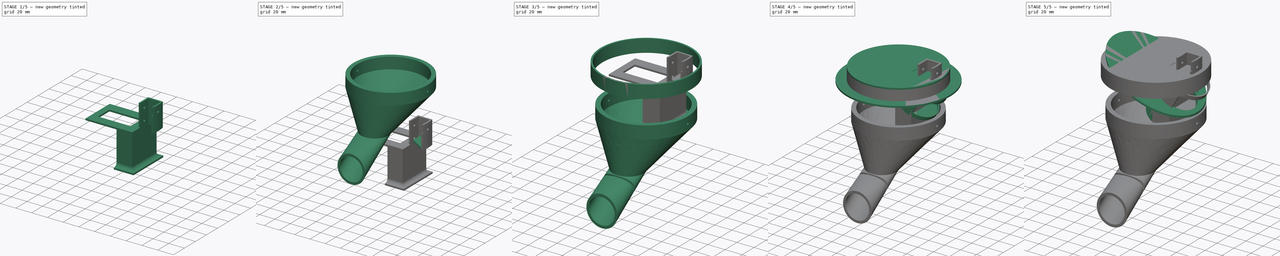
[diagram: build sequence overview — one tinted view per stage of 5, left to right]
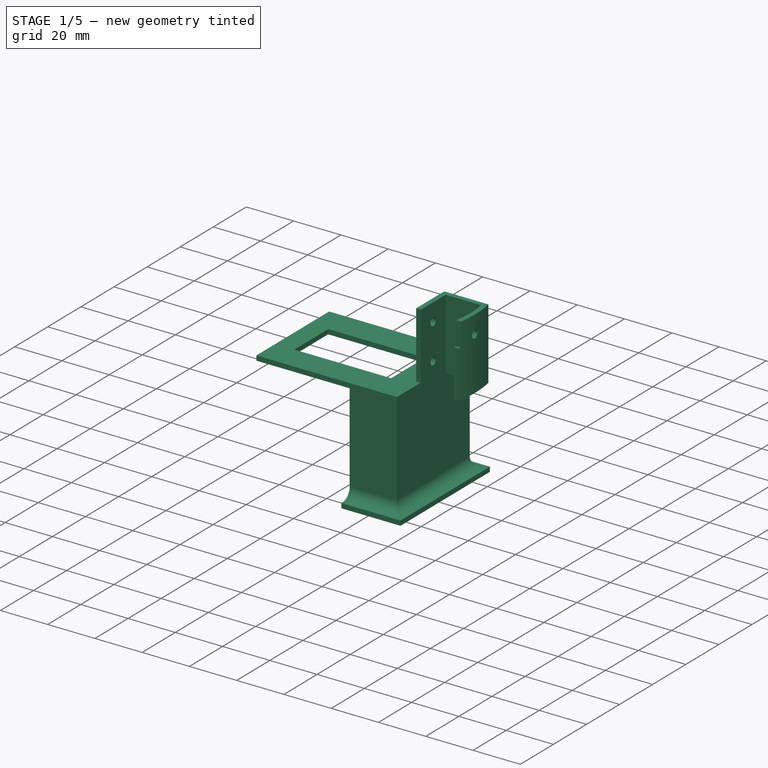
[diagram: stage 1 of 5 — iso view after this stage's code; geometry added in this stage tinted green]
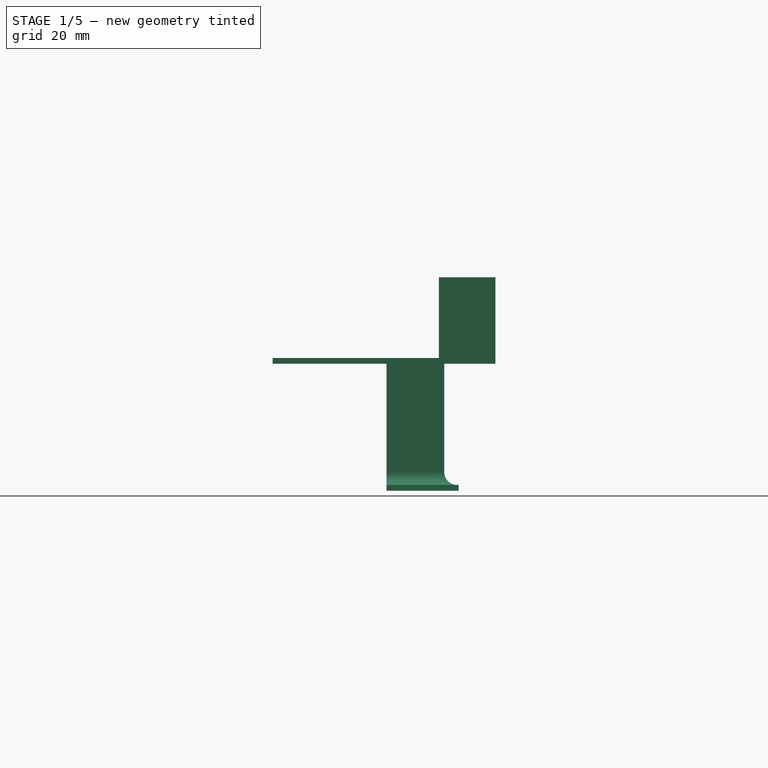
[diagram: stage 1 of 5 — front view after this stage's code; geometry added in this stage tinted green]
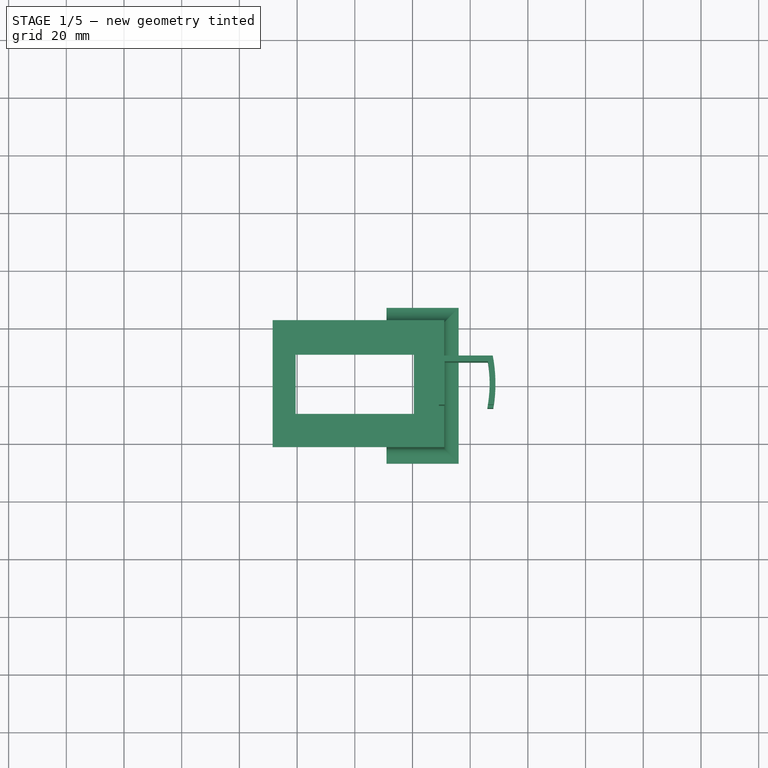
[diagram: stage 1 of 5 — top view after this stage's code; geometry added in this stage tinted green]
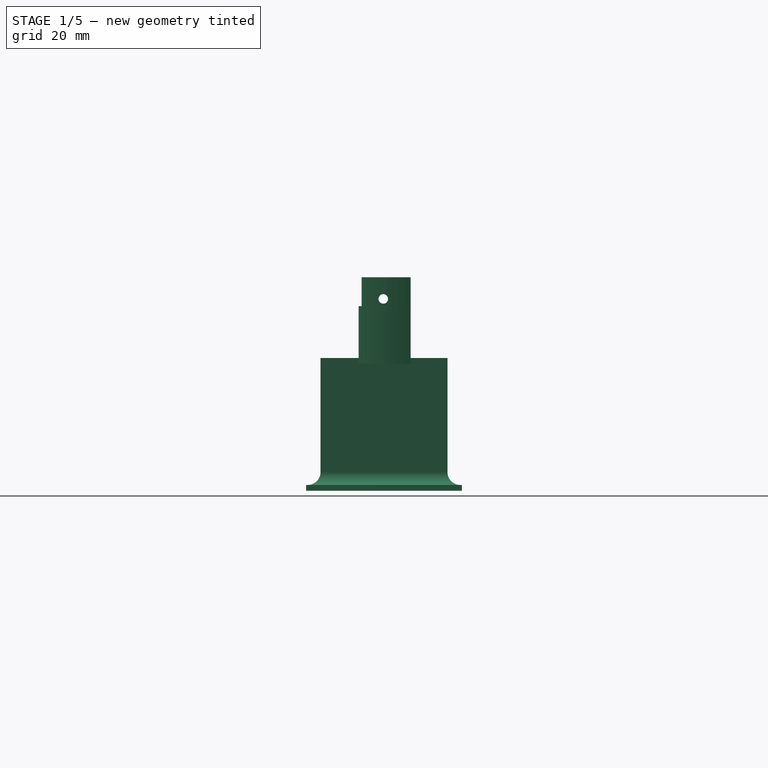
[diagram: stage 1 of 5 — right view after this stage's code; geometry added in this stage tinted green]
FCSTD DOCUMENT  (FreeCAD 0.20R29177 (Git))
Label: IoT3D
License: All rights reserved
LicenseURL: http://en.wikipedia.org/wiki/All_rights_reserved
objects: Sketcher::SketchObject×27, PartDesign::Pad×16, PartDesign::Body×9, PartDesign::Pocket×9, Part::FeaturePython×5, PartDesign::AdditiveLoft×2, PartDesign::FeatureBase×1, App::DocumentObjectGroup×1, PartDesign::Fillet×1, App::Part×1
note: 98 computed .brp shape members not serialized (recipe doc carries the construction recipe); baked Part::Feature solids carry a one-line shape summary decoded from their .brp

FEATURE [App::DocumentObjectGroup] GrExplode_Slice002  label="Funil"
  Group = -> [Slice002_child0,Slice002_child2]
FEATURE [Sketcher::SketchObject] Sketch021
  FullyConstrained = false
  MapMode = 5
  Support = -> [XY_Plane009]
  sketch-geometry (4):
    g0: ArcOfCircle CenterX=0 CenterY=0 CenterZ=0 NormalX=0 NormalY=0 NormalZ=1 AngleXU=0 Radius=48.75 StartAngle=6.10699 EndAngle=6.46498
    g1: ArcOfCircle CenterX=0 CenterY=0 CenterZ=0 NormalX=0 NormalY=0 NormalZ=1 AngleXU=0 Radius=46.75 StartAngle=6.09937 EndAngle=6.47285
    g2: LineSegment StartX=45.9116 StartY=8.81384 StartZ=0 EndX=47.9466 EndY=8.81384 EndZ=0
    g3: LineSegment StartX=45.9624 StartY=-8.54496 StartZ=0 EndX=47.9953 EndY=-8.54496 EndZ=0
  constraints (10):
    c: Coincident(g0,g-1)
    c: Coincident(g1,g0)
    c: Coincident(g2,g1)
    c: Coincident(g2,g0)
    c: Coincident(g3,g1)
    c: Coincident(g3,g0)
    c: Diameter(g0) = 97.5
    c: Diameter(g1) = 93.5
    c: Horizontal(g3)
    c: Horizontal(g2)
FEATURE [PartDesign::Pad] Pad011
  Direction = (0,0,1)
  Length = 20
  Length2 = 10
  Profile = -> Sketch021
  ReferenceAxis = -> Sketch021 [N_Axis]
  Type = 0
FEATURE [PartDesign::Body] Body008  label="Suporte_superficie_inclinada"
  Group = -> [Sketch021,Pad011,Sketch022,Pad012,Sketch023,Pocket007,Sketch024,Pocket008]
  Origin = -> Origin009
  Placement = pos=(-0.78,0,26.9) rot=(0,1,0;3.14159rad)
  Tip = -> Pocket008
FEATURE [Sketcher::SketchObject] Sketch025
  FullyConstrained = true
  MapMode = 5
  Support = -> [XY_Plane010]
  sketch-geometry (8):
    g0: ArcOfCircle CenterX=0 CenterY=0 CenterZ=0 NormalX=0 NormalY=0 NormalZ=1 AngleXU=0 Radius=48.75 StartAngle=6.12873 EndAngle=6.47931
    g1: LineSegment StartX=29.1445 StartY=9.5 StartZ=0 EndX=47.8154 EndY=9.5 EndZ=0
    g2: LineSegment StartX=46.1445 StartY=-7.5 StartZ=0 EndX=48.1696 EndY=-7.5 EndZ=0
    g3: LineSegment StartX=29.1445 StartY=9.5 StartZ=0 EndX=29.1445 EndY=-7.5 EndZ=0
    g4: LineSegment StartX=29.1445 StartY=-7.5 StartZ=0 EndX=31.1445 EndY=-7.5 EndZ=0
    g5: LineSegment StartX=31.1445 StartY=-7.5 StartZ=0 EndX=31.1445 EndY=7.5 EndZ=0
    g6: LineSegment StartX=31.1445 StartY=7.5 StartZ=0 EndX=46.1445 EndY=7.5 EndZ=0
    g7: ArcOfCircle CenterX=0 CenterY=0 CenterZ=0 NormalX=0 NormalY=0 NormalZ=1 AngleXU=0 Radius=46.75 StartAngle=6.12206 EndAngle=6.44431
  constraints (24):
    c: Coincident(g0,g-1)
    c: Coincident(g1,g0)
    c: Coincident(g2,g0)
    c: Horizontal(g1)
    c: Horizontal(g2)
    c: Diameter(g0) = 97.5
    c: DistanceY(g0,g1) = 9.5
    c: DistanceY(g2,g0) = 7.5
    c: Coincident(g3,g1)
    c: Vertical(g3)
    c: Coincident(g4,g3)
    c: Horizontal(g4)
    c: Coincident(g5,g4)
    c: Vertical(g5)
    c: Coincident(g6,g5)
    c: Horizontal(g6)
    c: Coincident(g7,g0)
    c: Coincident(g7,g6)
    c: Coincident(g7,g2)
    c: Diameter(g7) = 93.5
    c: DistanceX(g4,g4) = 2
    c: DistanceY(g5,g1) = 2
    c: DistanceX(g6,g6) = 15
    c: DistanceY(g5,g5) = 15
FEATURE [PartDesign::Pad] Pad013
  Direction = (0,0,1)
  Length = 30
  Length2 = 10
  Profile = -> Sketch025
  ReferenceAxis = -> Sketch025 [N_Axis]
  Type = 0
FEATURE [Sketcher::SketchObject] Sketch026
  FullyConstrained = true
  MapMode = 5
  Placement = pos=(29.1445,0,0) rot=(0.57735,-0.57735,-0.57735;2.0944rad)
  Support = -> [Pad013]
  sketch-geometry (2):
    g0: Circle CenterX=0 CenterY=7.5 CenterZ=0 NormalX=0 NormalY=0 NormalZ=1 AngleXU=0 Radius=1.65
    g1: Circle CenterX=0 CenterY=22.5 CenterZ=0 NormalX=0 NormalY=0 NormalZ=1 AngleXU=0 Radius=1.65
  constraints (6):
    c: PointOnObject(g0,g-2)
    c: DistanceY(g-1,g0) = 7.5
    c: Diameter(g0) = 3.3
    c: PointOnObject(g1,g-2)
    c: Diameter(g1) = 3.3
    c: DistanceY(g0,g1) = 15
FEATURE [PartDesign::Pocket] Pocket009
  BaseFeature = -> Pad013
  Direction = (1,0,0)
  Length = 0
  Length2 = 5
  Profile = -> Sketch026
  ReferenceAxis = -> Sketch026 [N_Axis]
  Type = 1
FEATURE [PartDesign::Body] Body009  label="Suporte_placa_eletronica"
  Group = -> [Sketch025,Pad013,Sketch026,Pocket009]
  Origin = -> Origin010
  Placement = pos=(0,0,-138) rot=(0,0,1;0rad)
  Tip = -> Pocket009
FEATURE [Sketcher::SketchObject] Sketch029
  FullyConstrained = true
  MapMode = 5
  Support = -> [XY_Plane012]
  sketch-geometry (8):
    g0: LineSegment StartX=-28.5 StartY=22.25 StartZ=0 EndX=31 EndY=22.25 EndZ=0
    g1: LineSegment StartX=31 StartY=22.25 StartZ=0 EndX=31 EndY=-21.75 EndZ=0
    g2: LineSegment StartX=31 StartY=-21.75 StartZ=0 EndX=-28.5 EndY=-21.75 EndZ=0
    g3: LineSegment StartX=-28.5 StartY=-21.75 StartZ=0 EndX=-28.5 EndY=22.25 EndZ=0
    g4: LineSegment StartX=-20.5 StartY=10.25 StartZ=0 EndX=20.5 EndY=10.25 EndZ=0
    g5: LineSegment StartX=20.5 StartY=10.25 StartZ=0 EndX=20.5 EndY=-10.25 EndZ=0
    g6: LineSegment StartX=20.5 StartY=-10.25 StartZ=0 EndX=-20.5 EndY=-10.25 EndZ=0
    g7: LineSegment StartX=-20.5 StartY=-10.25 StartZ=0 EndX=-20.5 EndY=10.25 EndZ=0
  constraints (23):
    c: Coincident(g0,g1)
    c: Coincident(g1,g2)
    c: Coincident(g2,g3)
    c: Coincident(g3,g0)
    c: Horizontal(g0)
    c: Horizontal(g2)
    c: Vertical(g1)
    c: Vertical(g3)
    c: DistanceY(g1,g1) = 44
    c: Coincident(g4,g5)
    c: Coincident(g5,g6)
    c: Coincident(g6,g7)
    c: Coincident(g7,g4)
    c: Horizontal(g4)
    c: Horizontal(g6)
    c: Vertical(g5)
    c: Vertical(g7)
    c: DistanceX(g4,g4) = 41
    c: DistanceY(g7,g7) = 20.5
    c: Symmetric(g6,g4,g-1)
    c: DistanceX(g0,g4) = 8
    c: DistanceY(g4,g0) = 12
    c: DistanceX(g-1,g0) = 31
FEATURE [PartDesign::Pad] Pad015
  Direction = (0,0,1)
  Length = 2
  Length2 = 10
  Profile = -> Sketch029
  ReferenceAxis = -> Sketch029 [N_Axis]
  Type = 0
FEATURE [Sketcher::SketchObject] Sketch030
  ExternalGeometry = -> [Sketch029]
  FullyConstrained = true
  MapMode = 5
  Placement = pos=(0,0,0) rot=(1,0,0;3.14159rad)
  Support = -> [Pad015]
  sketch-geometry (8):
    g0: LineSegment StartX=31 StartY=21.75 StartZ=0 EndX=31 EndY=-22.25 EndZ=0
    g1: LineSegment StartX=31 StartY=-22.25 StartZ=0 EndX=11 EndY=-22.25 EndZ=0
    g2: LineSegment StartX=11 StartY=-22.25 StartZ=0 EndX=11 EndY=-20.25 EndZ=0
    g3: LineSegment StartX=11 StartY=-20.25 StartZ=0 EndX=29 EndY=-20.25 EndZ=0
    g4: LineSegment StartX=29 StartY=-20.25 StartZ=0 EndX=29 EndY=19.75 EndZ=0
    g5: LineSegment StartX=29 StartY=19.75 StartZ=0 EndX=11 EndY=19.75 EndZ=0
    g6: LineSegment StartX=11 StartY=19.75 StartZ=0 EndX=11 EndY=21.75 EndZ=0
    g7: LineSegment StartX=31 StartY=21.75 StartZ=0 EndX=11 EndY=21.75 EndZ=0
  constraints (22):
    c: Coincident(g0,g-3)
    c: Coincident(g0,g-4)
    c: Coincident(g1,g0)
    c: Horizontal(g1)
    c: Coincident(g2,g1)
    c: Vertical(g2)
    c: Coincident(g3,g2)
    c: Horizontal(g3)
    c: Coincident(g4,g3)
    c: Vertical(g4)
    c: Coincident(g5,g4)
    c: Horizontal(g5)
    c: Coincident(g6,g5)
    c: Vertical(g6)
    c: Coincident(g7,g0)
    c: Coincident(g7,g6)
    c: Horizontal(g7)
    c: DistanceY(g2,g2) = 2
    c: DistanceY(g6,g6) = 2
    c: DistanceX(g3,g0) = 2
    c: DistanceX(g1,g1) = 20
    c: DistanceX(g7,g7) = 20
FEATURE [PartDesign::Pad] Pad016
  BaseFeature = -> Pad015
  Direction = (0,0,-1)
  Length = 44
  Length2 = 10
  Profile = -> Sketch030
  ReferenceAxis = -> Sketch030 [N_Axis]
  Type = 0
FEATURE [Sketcher::SketchObject] Sketch031
  ExternalGeometry = -> [Pad016]
  FullyConstrained = true
  MapMode = 5
  Placement = pos=(0,0,-44) rot=(1,0,0;3.14159rad)
  Support = -> [Pad016]
  sketch-geometry (8):
    g0: LineSegment StartX=11 StartY=19.75 StartZ=0 EndX=11 EndY=26.75 EndZ=0
    g1: LineSegment StartX=11 StartY=26.75 StartZ=0 EndX=36 EndY=26.75 EndZ=0
    g2: LineSegment StartX=36 StartY=26.75 StartZ=0 EndX=36 EndY=-27.25 EndZ=0
    g3: LineSegment StartX=36 StartY=-27.25 StartZ=0 EndX=11 EndY=-27.25 EndZ=0
    g4: LineSegment StartX=11 StartY=-20.25 StartZ=0 EndX=11 EndY=-27.25 EndZ=0
    g5: LineSegment StartX=11 StartY=19.75 StartZ=0 EndX=29 EndY=19.75 EndZ=0
    g6: LineSegment StartX=29 StartY=19.75 StartZ=0 EndX=29 EndY=-20.25 EndZ=0
    g7: LineSegment StartX=29 StartY=-20.25 StartZ=0 EndX=11 EndY=-20.25 EndZ=0
  constraints (22):
    c: Coincident(g0,g-3)
    c: Vertical(g0)
    c: Coincident(g1,g0)
    c: Horizontal(g1)
    c: Coincident(g2,g1)
    c: Vertical(g2)
    c: Coincident(g3,g2)
    c: Horizontal(g3)
    c: Coincident(g4,g-4)
    c: Coincident(g4,g3)
    c: Vertical(g4)
    c: DistanceY(g0,g0) = 7
    c: DistanceY(g4,g4) = 7
    c: DistanceX(g1,g1) = 25
    c: Coincident(g5,g0)
    c: Horizontal(g5)
    c: Coincident(g6,g5)
    c: Vertical(g6)
    c: Coincident(g7,g6)
    c: Coincident(g7,g4)
    c: Horizontal(g7)
    c: DistanceX(g5,g5) = 18
FEATURE [PartDesign::Pad] Pad017
  BaseFeature = -> Pad016
  Direction = (0,0,-1)
  Length = 2
  Length2 = 10
  Profile = -> Sketch031
  ReferenceAxis = -> Sketch031 [N_Axis]
  Reversed = true
  Type = 0
FEATURE [PartDesign::Fillet] Fillet
  Base = -> Pad017 [Edge31,Edge23,Edge47]
  BaseFeature = -> Pad017
  Radius = 4.5
  SupportTransform = false
  UseAllEdges = false
FEATURE [PartDesign::Body] Body011  label="Suporte_motor"
  Group = -> [Sketch029,Pad015,Sketch030,Pad016,Sketch031,Pad017,Fillet]
  Origin = -> Origin012
  Placement = pos=(-6.41154,6.6e-15,-47.1051) rot=(0,1,0;3.66519rad)
  Tip = -> Fillet
FEATURE [App::Part] Part
  Group = -> [Body,Body001,Body002,Body003,Body004,Body005,Body008,Body009,Body011]
  Origin = -> Origin
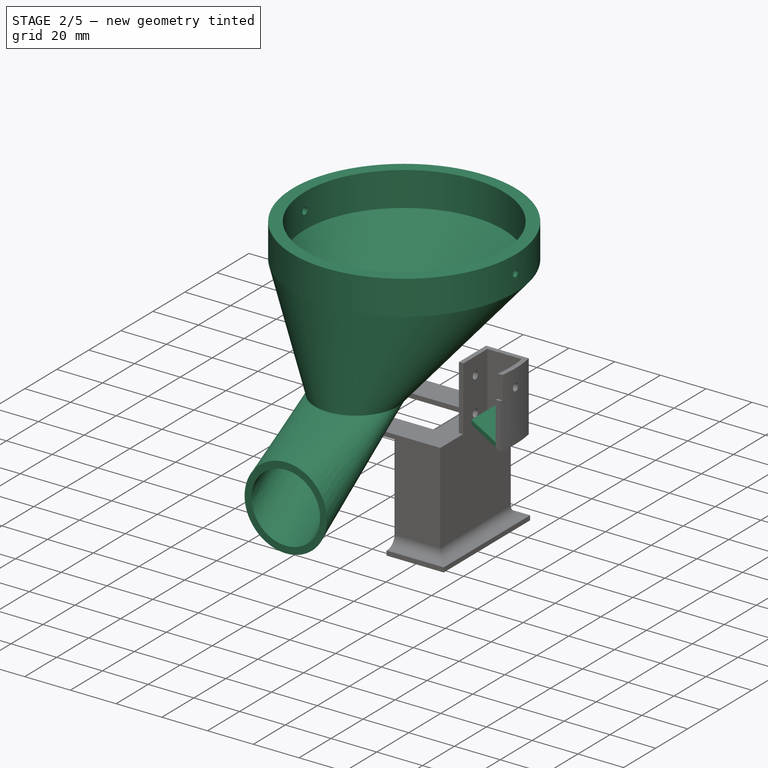
[diagram: stage 2 of 5 — iso view after this stage's code; geometry added in this stage tinted green]
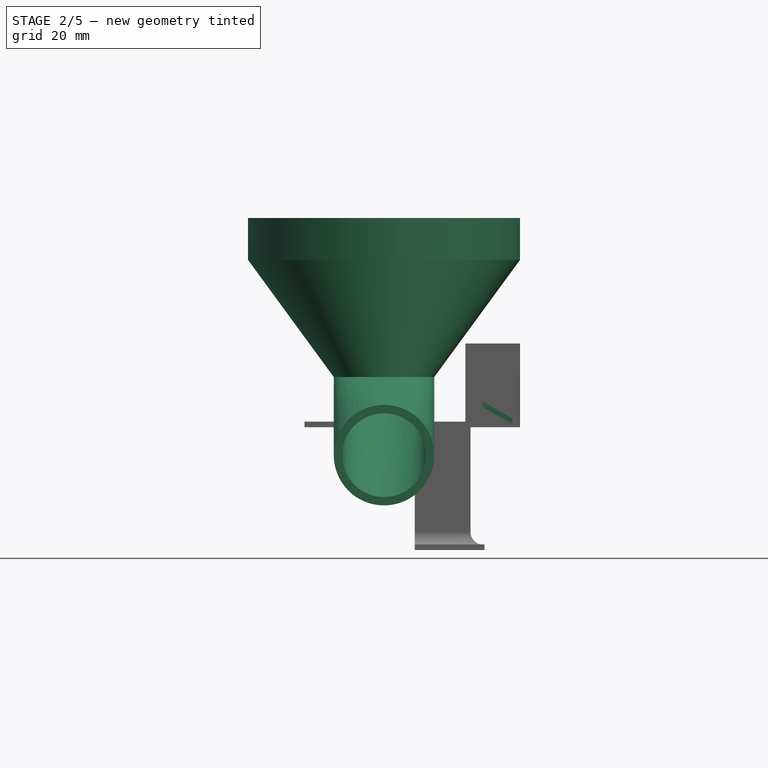
[diagram: stage 2 of 5 — front view after this stage's code; geometry added in this stage tinted green]
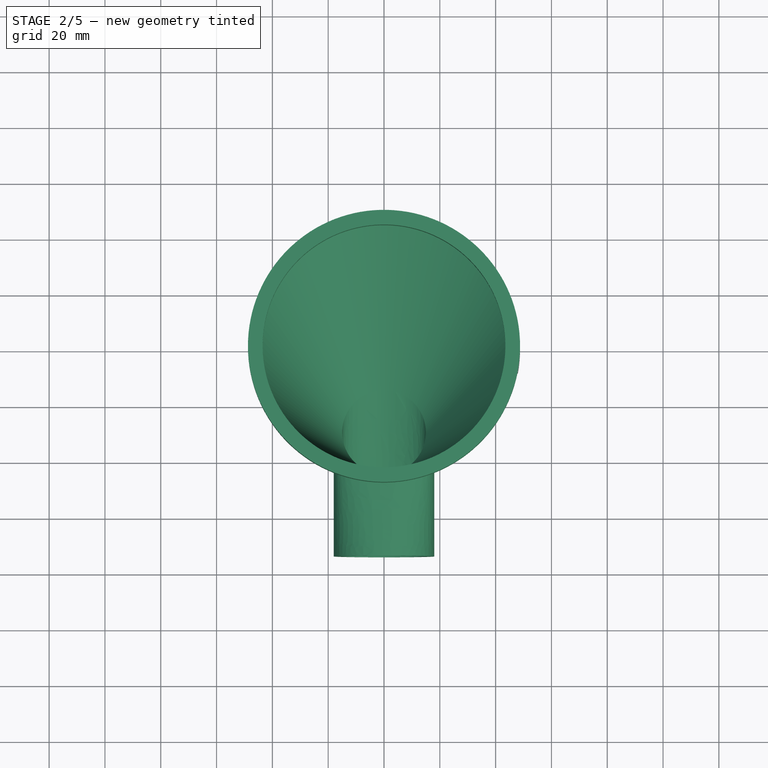
[diagram: stage 2 of 5 — top view after this stage's code; geometry added in this stage tinted green]
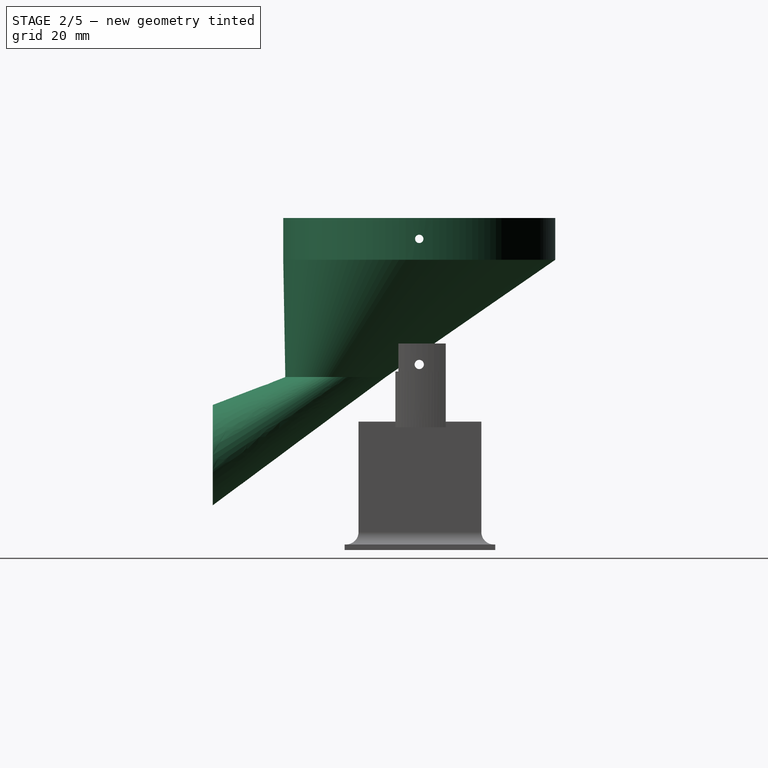
[diagram: stage 2 of 5 — right view after this stage's code; geometry added in this stage tinted green]
FEATURE [PartDesign::Body] Body  label="Tubo"
  Group = -> [Sketch,Pad]
  Origin = -> Origin001
  Placement = pos=(0,0,-177) rot=(0,0,1;0rad)
  Tip = -> Pad
FEATURE [Sketcher::SketchObject] Sketch001
  AttachmentOffset = pos=(0,0,60) rot=(0,0,1;0rad)
  FullyConstrained = true
  MapMode = 5
  Placement = pos=(0,0,60) rot=(0,0,1;0rad)
  Support = -> [XY_Plane002]
  sketch-geometry (2):
    g0: Circle CenterX=0 CenterY=0 CenterZ=0 NormalX=0 NormalY=0 NormalZ=1 AngleXU=0 Radius=43.5
    g1: Circle CenterX=0 CenterY=0 CenterZ=0 NormalX=0 NormalY=0 NormalZ=1 AngleXU=0 Radius=48.75
  constraints (4):
    c: Coincident(g0,g-1)
    c: Coincident(g1,g0)
    c: Diameter(g1) = 97.5
    c: Diameter(g0) = 87
FEATURE [Sketcher::SketchObject] Sketch002
  AttachmentOffset = pos=(0,-10,74) rot=(0,1,0;0rad)
  FullyConstrained = true
  MapMode = 5
  Placement = pos=(0,-74,-10) rot=(1,0,0;1.5708rad)
  Support = -> [XZ_Plane002]
  sketch-geometry (2):
    g0: Circle CenterX=0 CenterY=0 CenterZ=0 NormalX=0 NormalY=0 NormalZ=1 AngleXU=0 Radius=15
    g1: Circle CenterX=0 CenterY=0 CenterZ=0 NormalX=0 NormalY=0 NormalZ=1 AngleXU=0 Radius=18
  constraints (4):
    c: Coincident(g0,g-1)
    c: Coincident(g1,g0)
    c: Diameter(g0) = 30
    c: Diameter(g1) = 36
FEATURE [PartDesign::Pad] Pad001
  Direction = (0,0,1)
  Length = 15
  Length2 = 10
  Profile = -> Sketch001
  ReferenceAxis = -> Sketch001 [N_Axis]
  Type = 0
FEATURE [Sketcher::SketchObject] Sketch004
  ExternalGeometry = -> [Sketch001]
  FullyConstrained = true
  MapMode = 5
  Placement = pos=(0,0,0) rot=(0.57735,0.57735,0.57735;2.0944rad)
  Support = -> [YZ_Plane002]
  sketch-geometry (1):
    g0: Circle CenterX=0 CenterY=67.5 CenterZ=0 NormalX=0 NormalY=0 NormalZ=1 AngleXU=0 Radius=1.5
  constraints (3):
    c: PointOnObject(g0,g-2)
    c: Diameter(g0) = 3
    c: DistanceY(g-3,g0) = 7.5
FEATURE [PartDesign::Pocket] Pocket
  BaseFeature = -> Pad001
  Direction = (-1,2e-16,-3e-16)
  Length = 5
  Length2 = 5
  Midplane = true
  Profile = -> Sketch004
  ReferenceAxis = -> Sketch004 [N_Axis]
  Type = 1
FEATURE [PartDesign::Body] Body005  label="tampa_tubo"
  Group = -> [Sketch015,Pad008,Sketch016,Pad009]
  Origin = -> Origin006
  Placement = pos=(0,0,120) rot=(0,0,1;0rad)
  Tip = -> Pad009
FEATURE [Sketcher::SketchObject] Sketch017
  AttachmentOffset = pos=(0,-30,18) rot=(0,0,1;0rad)
  FullyConstrained = true
  MapMode = 5
  Placement = pos=(0,-30,18) rot=(0,0,1;0rad)
  Support = -> [XY_Plane002]
  sketch-geometry (2):
    g0: Circle CenterX=0 CenterY=0 CenterZ=0 NormalX=0 NormalY=0 NormalZ=1 AngleXU=0 Radius=15
    g1: Circle CenterX=0 CenterY=0 CenterZ=0 NormalX=0 NormalY=0 NormalZ=1 AngleXU=0 Radius=18
  constraints (4):
    c: Coincident(g0,g-1)
    c: Coincident(g1,g0)
    c: Diameter(g0) = 30
    c: Diameter(g1) = 36
FEATURE [PartDesign::AdditiveLoft] AdditiveLoft
  BaseFeature = -> Pocket
  Closed = false
  Profile = -> Sketch001
  Ruled = false
  Sections = -> [Sketch017]
FEATURE [PartDesign::AdditiveLoft] AdditiveLoft001
  BaseFeature = -> AdditiveLoft
  Closed = false
  Profile = -> Sketch017
  Ruled = false
  Sections = -> [Sketch002]
FEATURE [Sketcher::SketchObject] Sketch022
  ExternalGeometry = -> [Pad011]
  FullyConstrained = false
  MapMode = 5
  Placement = pos=(0,-8.54496,0) rot=(1,0,0;1.5708rad)
  Support = -> [Pad011]
  sketch-geometry (4):
    g0: LineSegment StartX=47.9953 StartY=0 StartZ=0 EndX=35.3351 EndY=7.30934 EndZ=0
    g1: LineSegment StartX=35.3351 StartY=7.30934 StartZ=0 EndX=35.3351 EndY=9.30934 EndZ=0
    g2: LineSegment StartX=35.3351 StartY=9.30934 StartZ=0 EndX=47.9953 EndY=2 EndZ=0
    g3: LineSegment StartX=47.9953 StartY=0 StartZ=0 EndX=47.9953 EndY=2 EndZ=0
  constraints (10):
    c: Coincident(g0,g-3)
    c: Coincident(g1,g0)
    c: Coincident(g2,g1)
    c: Coincident(g3,g0)
    c: Coincident(g3,g2)
    c: Vertical(g3)
    c: Vertical(g1)
    c: Angle(g0,g-1) = 0.523599
    c: DistanceY(g3,g3) = 2
    c: DistanceY(g1,g1) = 2
FEATURE [PartDesign::Pad] Pad012
  BaseFeature = -> Pad011
  Direction = (0,-1,2e-16)
  Length = 17
  Length2 = 10
  Profile = -> Sketch022
  ReferenceAxis = -> Sketch022 [N_Axis]
  Reversed = true
  Type = 0
FEATURE [Sketcher::SketchObject] Sketch023
  ExternalGeometry = -> [Pad012]
  FullyConstrained = false
  MapMode = 5
  Placement = pos=(0,-8.54496,0) rot=(1,0,0;1.5708rad)
  Support = -> [Pad012]
  sketch-geometry (3):
    g0: LineSegment StartX=43.1595 StartY=2.79192 StartZ=0 EndX=47.9953 EndY=0 EndZ=0
    g1: LineSegment StartX=43.1595 StartY=2.79192 StartZ=0 EndX=43.1595 EndY=0 EndZ=0
    g2: LineSegment StartX=47.9953 StartY=0 StartZ=0 EndX=43.1595 EndY=0 EndZ=0
  constraints (7):
    c: Coincident(g-3,g0)
    c: Angle(g0,g-1) = 0.523599
    c: Coincident(g1,g0)
    c: Vertical(g1)
    c: Coincident(g2,g0)
    c: Coincident(g2,g1)
    c: Horizontal(g2)
FEATURE [PartDesign::Pocket] Pocket007
  BaseFeature = -> Pad012
  Direction = (0,1,-2e-16)
  Length = 5
  Length2 = 5
  Profile = -> Sketch023
  ReferenceAxis = -> Sketch023 [N_Axis]
  Type = 1
FEATURE [Sketcher::SketchObject] Sketch024
  FullyConstrained = false
  MapMode = 5
  Placement = pos=(0,0,0) rot=(0.57735,0.57735,0.57735;2.0944rad)
  Support = -> [YZ_Plane009]
  sketch-geometry (1):
    g0: Circle CenterX=0 CenterY=15.4342 CenterZ=0 NormalX=0 NormalY=0 NormalZ=1 AngleXU=0 Radius=1.6
  constraints (2):
    c: PointOnObject(g0,g-2)
    c: Diameter(g0) = 3.2
FEATURE [PartDesign::Pocket] Pocket008
  BaseFeature = -> Pocket007
  Direction = (-1,2e-16,-3e-16)
  Length = 5
  Length2 = 5
  Profile = -> Sketch024
  ReferenceAxis = -> Sketch024 [N_Axis]
  Reversed = true
  Type = 1
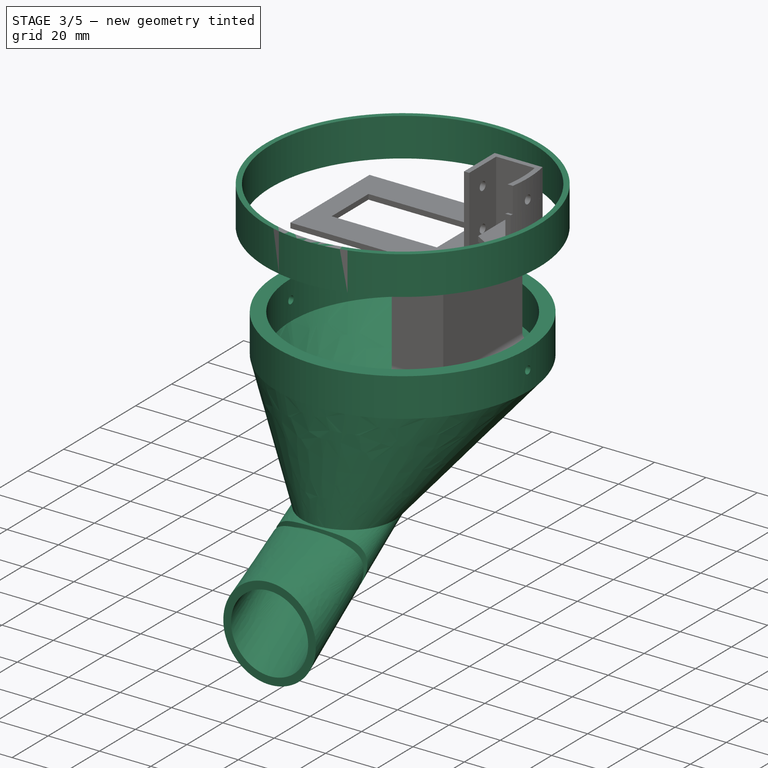
[diagram: stage 3 of 5 — iso view after this stage's code; geometry added in this stage tinted green]
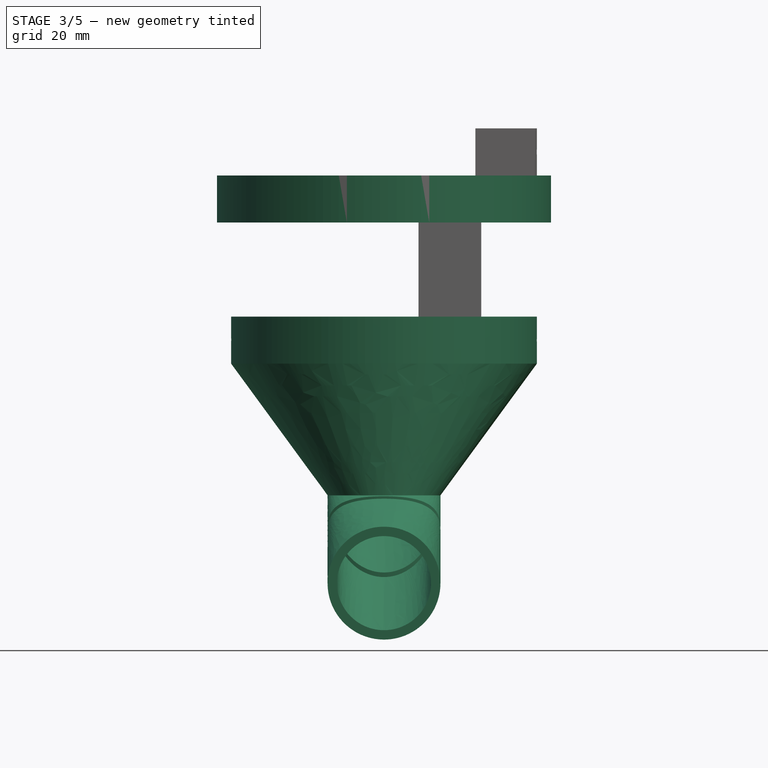
[diagram: stage 3 of 5 — front view after this stage's code; geometry added in this stage tinted green]
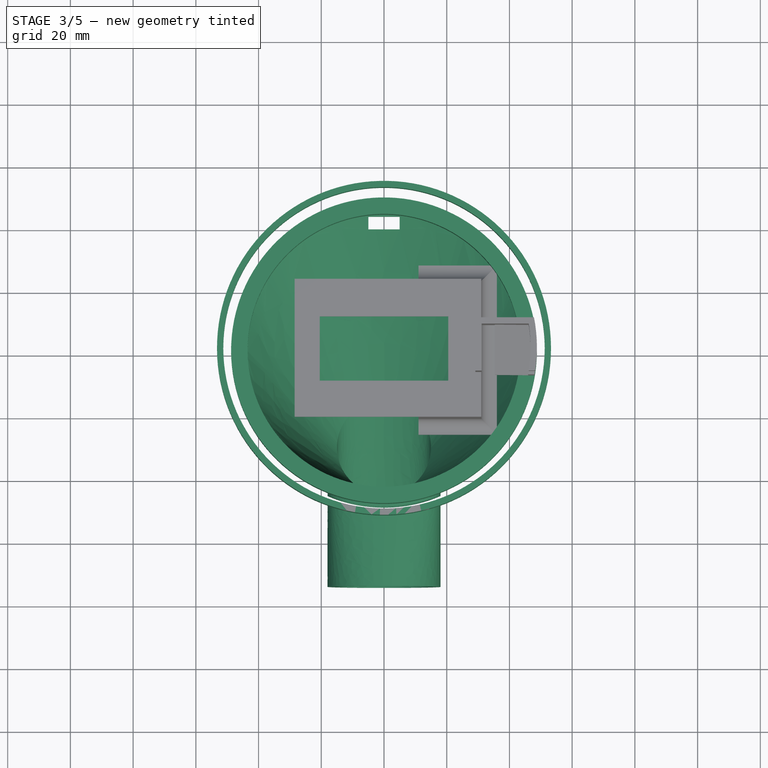
[diagram: stage 3 of 5 — top view after this stage's code; geometry added in this stage tinted green]
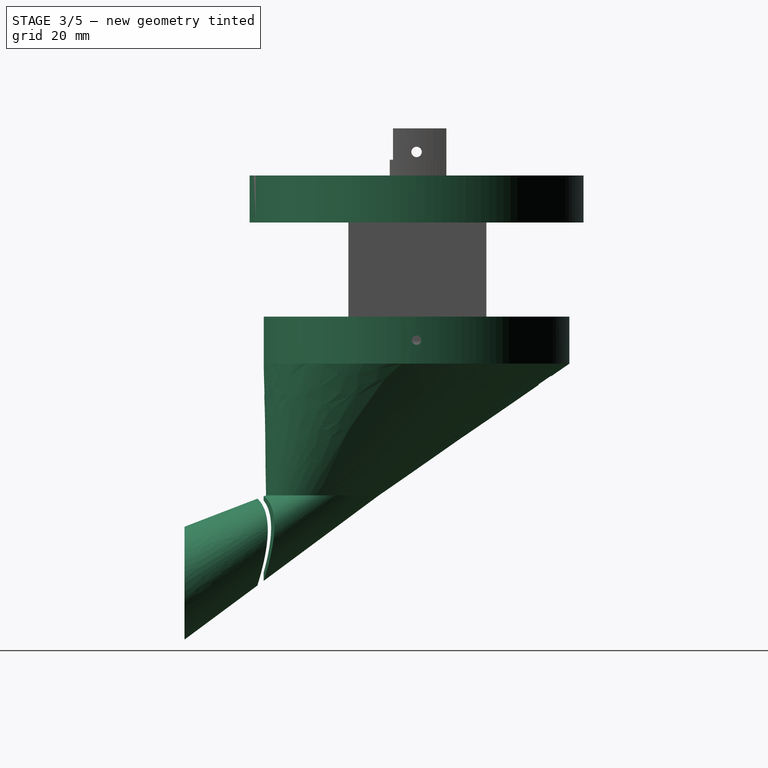
[diagram: stage 3 of 5 — right view after this stage's code; geometry added in this stage tinted green]
FEATURE [Sketcher::SketchObject] Sketch
  FullyConstrained = true
  MapMode = 5
  Support = -> [XY_Plane001]
  sketch-geometry (2):
    g0: Circle CenterX=0 CenterY=0 CenterZ=0 NormalX=0 NormalY=0 NormalZ=1 AngleXU=0 Radius=48.75
    g1: Circle CenterX=0 CenterY=0 CenterZ=0 NormalX=0 NormalY=0 NormalZ=1 AngleXU=0 Radius=50.75
  constraints (4):
    c: Coincident(g0,g-1)
    c: Coincident(g1,g0)
    c: Diameter(g0) = 97.5
    c: Diameter(g1) = 101.5
FEATURE [PartDesign::Pad] Pad
  Direction = (0,0,1)
  Length = 300
  Length2 = 10
  Profile = -> Sketch
  ReferenceAxis = -> Sketch [N_Axis]
  Type = 0
FEATURE [PartDesign::Body] Body004  label="tampa_atuador"
  Group = -> [Sketch010,Pad005,Sketch011,Pocket003,Sketch012,Pad006,Sketch013,Pad007,Sketch014,Pocket004]
  Origin = -> Origin005
  Placement = pos=(-15,0,-24) rot=(0,0,1;0rad)
  Tip = -> Pocket004
FEATURE [Sketcher::SketchObject] Sketch015
  FullyConstrained = true
  MapMode = 5
  Support = -> [XY_Plane006]
  sketch-geometry (2):
    g0: Circle CenterX=0 CenterY=0 CenterZ=0 NormalX=0 NormalY=0 NormalZ=1 AngleXU=0 Radius=51.25
    g1: Circle CenterX=0 CenterY=0 CenterZ=0 NormalX=0 NormalY=0 NormalZ=1 AngleXU=0 Radius=53.25
  constraints (4):
    c: Coincident(g0,g-1)
    c: Diameter(g0) = 102.5
    c: Coincident(g1,g0)
    c: Diameter(g1) = 106.5
FEATURE [PartDesign::Pad] Pad008
  Direction = (0,0,1)
  Length = 15
  Length2 = 10
  Profile = -> Sketch015
  ReferenceAxis = -> Sketch015 [N_Axis]
  Type = 0
FEATURE [Sketcher::SketchObject] Sketch018
  FullyConstrained = false
  MapMode = 5
  Support = -> [XY_Plane002]
  sketch-geometry (4):
    g0: LineSegment StartX=-5 StartY=42.8592 StartZ=0 EndX=5 EndY=42.8592 EndZ=0
    g1: LineSegment StartX=5 StartY=42.8592 StartZ=0 EndX=5 EndY=38.8592 EndZ=0
    g2: LineSegment StartX=5 StartY=38.8592 StartZ=0 EndX=-5 EndY=38.8592 EndZ=0
    g3: LineSegment StartX=-5 StartY=38.8592 StartZ=0 EndX=-5 EndY=42.8592 EndZ=0
  constraints (11):
    c: Coincident(g0,g1)
    c: Coincident(g1,g2)
    c: Coincident(g2,g3)
    c: Coincident(g3,g0)
    c: Horizontal(g0)
    c: Horizontal(g2)
    c: Vertical(g1)
    c: Vertical(g3)
    c: DistanceX(g-2,g0) = -5
    c: DistanceX(g-1,g1) = 5
    c: DistanceY(g1,g1) = 4
FEATURE [PartDesign::Pocket] Pocket005
  BaseFeature = -> AdditiveLoft001
  Direction = (0,0,-1)
  Length = 5
  Length2 = 5
  Profile = -> Sketch018
  ReferenceAxis = -> Sketch018 [N_Axis]
  Reversed = true
  Type = 1
FEATURE [PartDesign::Body] Body001  label="Funil Antes de Slice"
  Group = -> [Sketch001,Sketch002,Pad001,Sketch004,Pocket,Sketch017,AdditiveLoft,AdditiveLoft001,Sketch018,Pocket005]
  Origin = -> Origin002
  Placement = pos=(0,0,-105) rot=(0,0,1;0rad)
  Tip = -> Pocket005
FEATURE [Part::FeaturePython] Slice002  # WARN: FeaturePython — macro-defined, semantics opaque (R4)
  Base = -> Body001
  Mode = 1
  Tolerance = 0
  Tools = -> [Body]
FEATURE [Part::FeaturePython] Slice002_child0  label="Funil_interno"  # WARN: FeaturePython — macro-defined, semantics opaque (R4)
  Base = -> Slice002
  FilterType = 1
  Invert = false
  OverrideMaxVal = 0
  WindowFrom = 80
  WindowTo = 100
  items = 0
FEATURE [Part::FeaturePython] Slice002_child2  label="extensao_funil"  # WARN: FeaturePython — macro-defined, semantics opaque (R4)
  Base = -> Slice002
  FilterType = 1
  Invert = false
  OverrideMaxVal = 0
  WindowFrom = 80
  WindowTo = 100
  items = 2
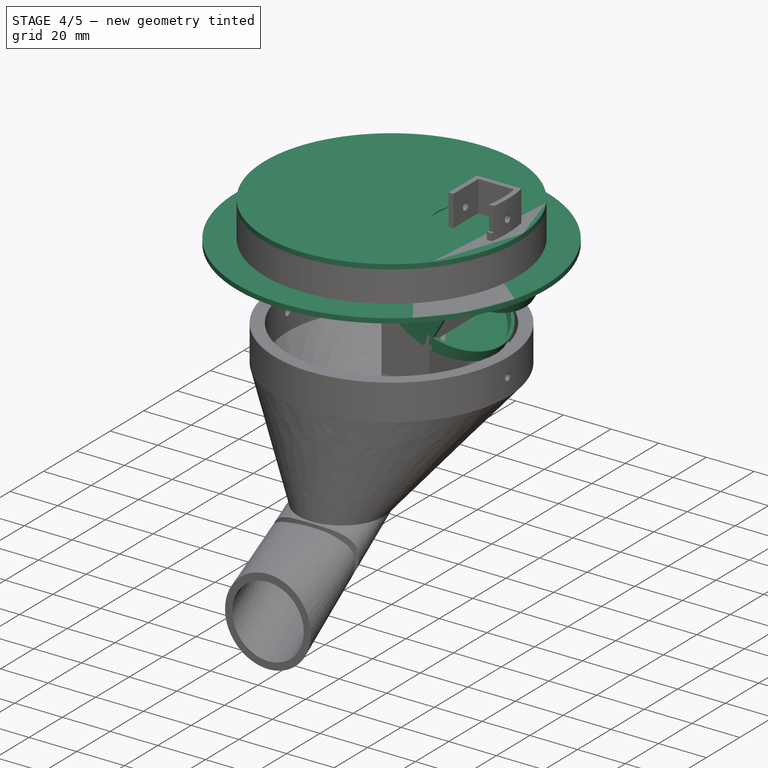
[diagram: stage 4 of 5 — iso view after this stage's code; geometry added in this stage tinted green]
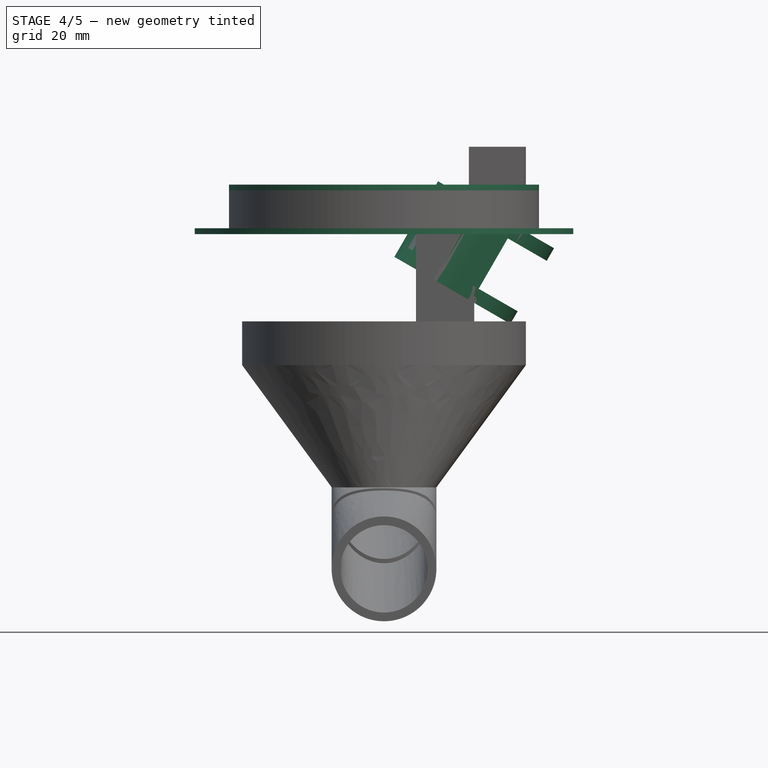
[diagram: stage 4 of 5 — front view after this stage's code; geometry added in this stage tinted green]
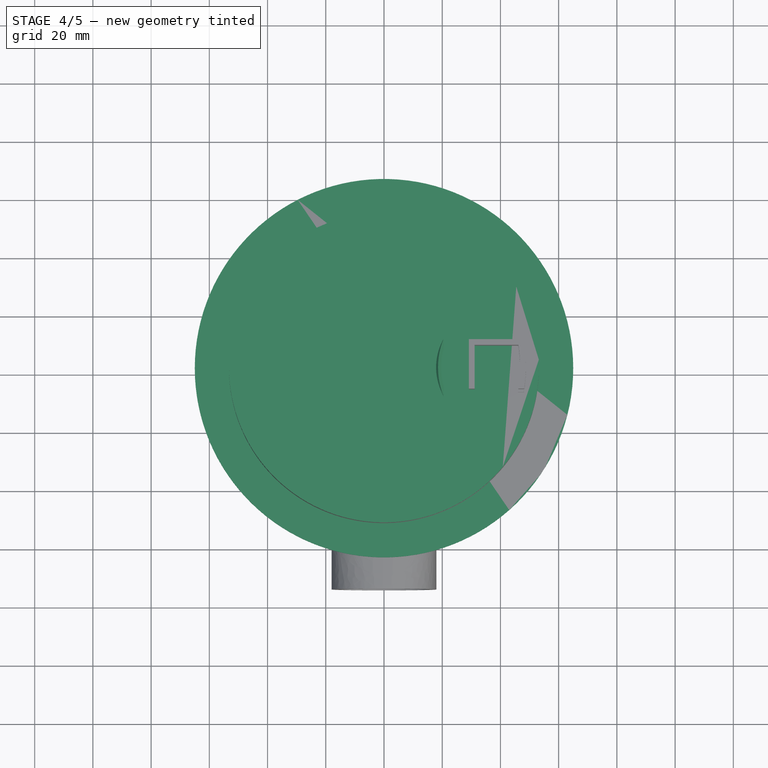
[diagram: stage 4 of 5 — top view after this stage's code; geometry added in this stage tinted green]
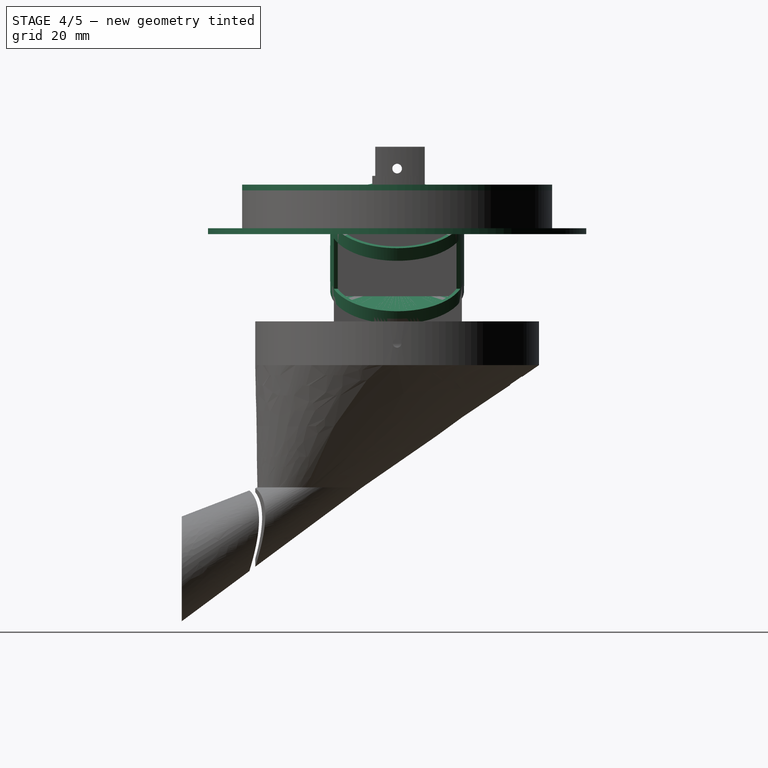
[diagram: stage 4 of 5 — right view after this stage's code; geometry added in this stage tinted green]
FEATURE [Sketcher::SketchObject] Sketch005
  FullyConstrained = true
  MapMode = 5
  Support = -> [XY_Plane003]
  sketch-geometry (1):
    g0: Circle CenterX=0 CenterY=0 CenterZ=0 NormalX=0 NormalY=0 NormalZ=1 AngleXU=0 Radius=65
  constraints (2):
    c: Coincident(g0,g-1)
    c: Diameter(g0) = 130
FEATURE [PartDesign::Pad] Pad002
  Direction = (0,0,1)
  Length = 2
  Length2 = 10
  Profile = -> Sketch005
  ReferenceAxis = -> Sketch005 [N_Axis]
  Type = 0
FEATURE [PartDesign::Body] Body003  label="superficie_inclinada"
  BaseFeature = -> Slice001_child2
  Group = -> [Clone,Sketch006,Pocket001,Sketch007,Pad003,Sketch008,Pocket002,Sketch009,Pad004]
  Origin = -> Origin004
  Tip = -> Pad004
FEATURE [Sketcher::SketchObject] Sketch010
  AttachmentOffset = pos=(0,0,0) rot=(0,1,0;0.523599rad)
  FullyConstrained = true
  MapMode = 5
  Placement = pos=(0,0,0) rot=(0,1,0;0.523599rad)
  Support = -> [XY_Plane005]
  sketch-geometry (2):
    g0: Circle CenterX=30 CenterY=0 CenterZ=0 NormalX=0 NormalY=0 NormalZ=1 AngleXU=0 Radius=21.75
    g1: Circle CenterX=30 CenterY=0 CenterZ=0 NormalX=0 NormalY=0 NormalZ=1 AngleXU=0 Radius=23
  constraints (5):
    c: PointOnObject(g0,g-1)
    c: Diameter(g0) = 43.5
    c: DistanceX(g-1,g0) = 30
    c: Coincident(g1,g0)
    c: Diameter(g1) = 46
FEATURE [PartDesign::Pad] Pad005
  Direction = (0.5,0,0.866025)
  Length = 25
  Length2 = 10
  Profile = -> Sketch010
  ReferenceAxis = -> Sketch010 [N_Axis]
  Type = 0
FEATURE [Sketcher::SketchObject] Sketch011
  FullyConstrained = false
  MapMode = 5
  Placement = pos=(3.6e-15,0,6.2e-15) rot=(0.965926,0,-0.258819;3.14159rad)
  Support = -> [Pad005]
  sketch-geometry (4):
    g0: LineSegment StartX=37.5531 StartY=25.4913 StartZ=0 EndX=73.674 EndY=25.4913 EndZ=0
    g1: LineSegment StartX=73.674 StartY=25.4913 StartZ=0 EndX=73.674 EndY=-29.388 EndZ=0
    g2: LineSegment StartX=73.674 StartY=-29.388 StartZ=0 EndX=37.5531 EndY=-29.388 EndZ=0
    g3: LineSegment StartX=37.5531 StartY=-29.388 StartZ=0 EndX=37.5531 EndY=25.4913 EndZ=0
  constraints (8):
    c: Coincident(g0,g1)
    c: Coincident(g1,g2)
    c: Coincident(g2,g3)
    c: Coincident(g3,g0)
    c: Horizontal(g0)
    c: Horizontal(g2)
    c: Vertical(g1)
    c: Vertical(g3)
FEATURE [PartDesign::Pocket] Pocket003
  BaseFeature = -> Pad005
  Direction = (0.5,0,0.866025)
  Length = 20
  Length2 = 5
  Profile = -> Sketch011
  ReferenceAxis = -> Sketch011 [N_Axis]
  Type = 0
FEATURE [Sketcher::SketchObject] Sketch012
  ExternalGeometry = -> [Sketch010]
  FullyConstrained = true
  MapMode = 5
  Placement = pos=(3.6e-15,0,6.2e-15) rot=(0.965926,0,-0.258819;3.14159rad)
  Support = -> [Pocket003]
  sketch-geometry (2):
    g0: Circle CenterX=30 CenterY=0 CenterZ=0 NormalX=0 NormalY=0 NormalZ=1 AngleXU=0 Radius=21.75
    g1: Circle CenterX=30 CenterY=0 CenterZ=0 NormalX=0 NormalY=0 NormalZ=1 AngleXU=0 Radius=23
  constraints (4):
    c: Coincident(g0,g-4)
    c: Equal(g0,g-3)
    c: Coincident(g1,g0)
    c: Equal(g-4,g1)
FEATURE [PartDesign::Pad] Pad006
  BaseFeature = -> Pocket003
  Direction = (-0.5,0,-0.866025)
  Length = 3
  Length2 = 10
  Profile = -> Sketch012
  ReferenceAxis = -> Sketch012 [N_Axis]
  Type = 0
FEATURE [Sketcher::SketchObject] Sketch013
  ExternalGeometry = -> [Pad006]
  FullyConstrained = true
  MapMode = 5
  Placement = pos=(-1.5,3e-16,-2.59808) rot=(0.965926,0,-0.258819;3.14159rad)
  Support = -> [Pad006]
  sketch-geometry (1):
    g0: Circle CenterX=30 CenterY=0 CenterZ=0 NormalX=0 NormalY=0 NormalZ=1 AngleXU=0 Radius=23
  constraints (2):
    c: Coincident(g0,g-3)
    c: Equal(g-3,g0)
FEATURE [PartDesign::Pad] Pad007
  BaseFeature = -> Pad006
  Direction = (-0.5,1e-16,-0.866025)
  Length = 2
  Length2 = 10
  Profile = -> Sketch013
  ReferenceAxis = -> Sketch013 [N_Axis]
  Type = 0
FEATURE [Sketcher::SketchObject] Sketch014
  ExternalGeometry = -> [Pad007]
  FullyConstrained = true
  MapMode = 5
  Placement = pos=(-2.5,4e-16,-4.33013) rot=(0.965926,0,-0.258819;3.14159rad)
  Support = -> [Pad007]
  sketch-geometry (1):
    g0: Circle CenterX=30 CenterY=0 CenterZ=0 NormalX=0 NormalY=0 NormalZ=1 AngleXU=0 Radius=1
  constraints (2):
    c: Coincident(g0,g-3)
    c: Diameter(g0) = 2
FEATURE [PartDesign::Pocket] Pocket004
  BaseFeature = -> Pad007
  Direction = (0.5,-1e-16,0.866025)
  Length = 5
  Length2 = 5
  Profile = -> Sketch014
  ReferenceAxis = -> Sketch014 [N_Axis]
  Type = 1
FEATURE [Sketcher::SketchObject] Sketch016
  ExternalGeometry = -> [Pad008]
  FullyConstrained = true
  MapMode = 5
  Placement = pos=(0,0,15) rot=(0,0,1;0rad)
  Support = -> [Pad008]
  sketch-geometry (1):
    g0: Circle CenterX=0 CenterY=0 CenterZ=0 NormalX=0 NormalY=0 NormalZ=1 AngleXU=0 Radius=53.25
  constraints (2):
    c: Coincident(g0,g-3)
    c: Equal(g-3,g0)
FEATURE [PartDesign::Pad] Pad009
  BaseFeature = -> Pad008
  Direction = (0,0,1)
  Length = 2
  Length2 = 10
  Profile = -> Sketch016
  ReferenceAxis = -> Sketch016 [N_Axis]
  Type = 0
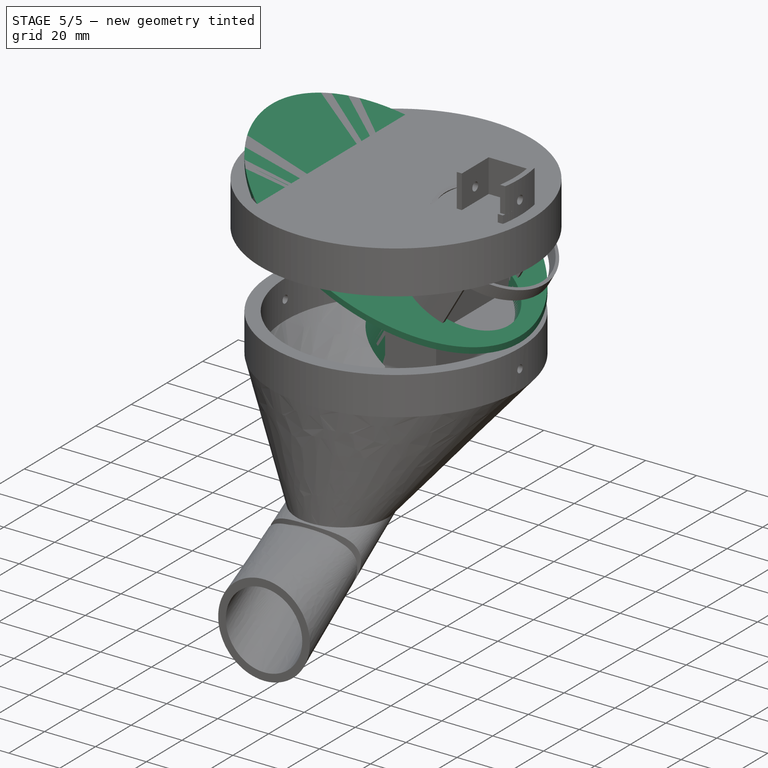
[diagram: stage 5 of 5 — iso view after this stage's code; geometry added in this stage tinted green]
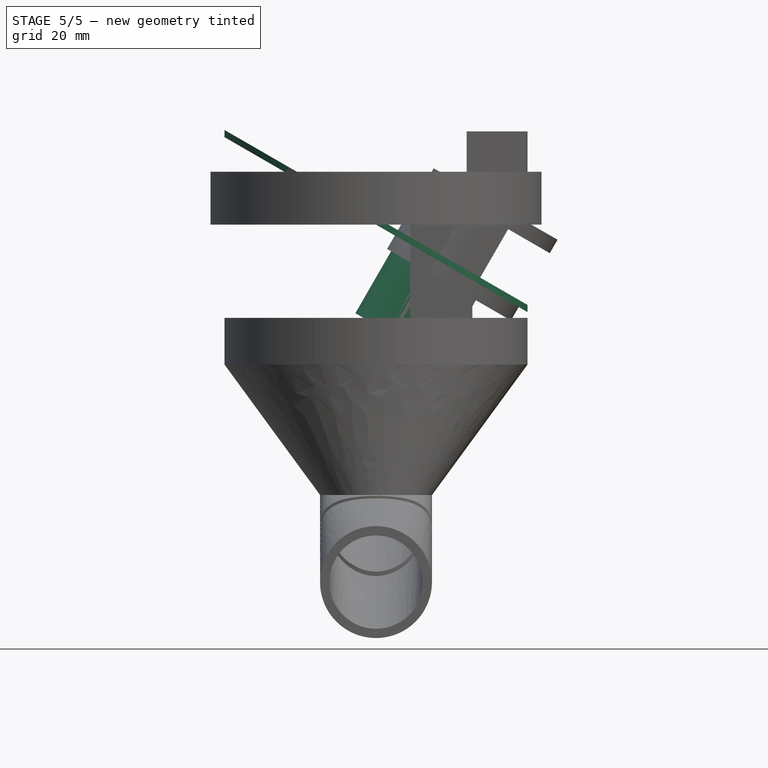
[diagram: stage 5 of 5 — front view after this stage's code; geometry added in this stage tinted green]
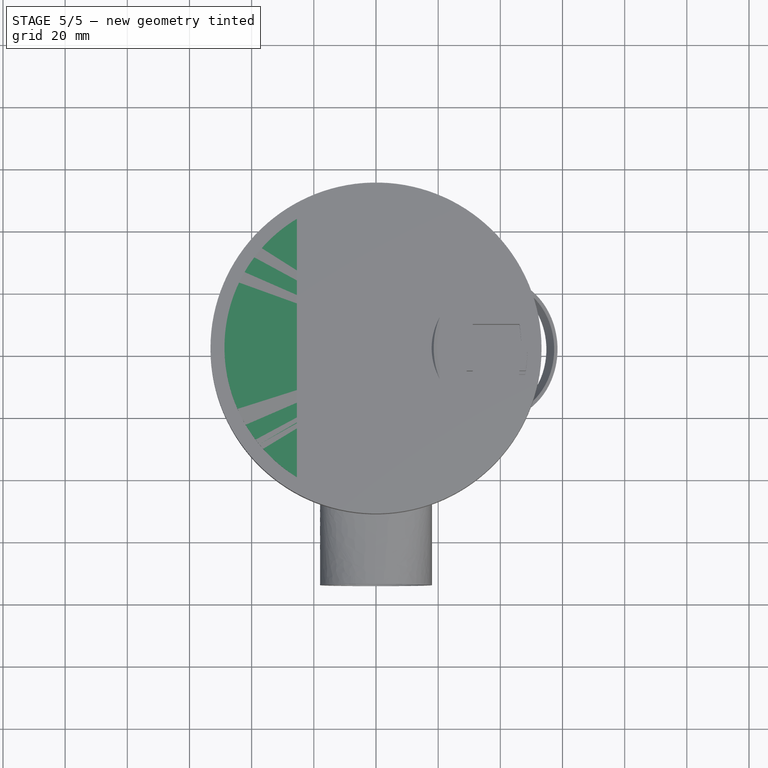
[diagram: stage 5 of 5 — top view after this stage's code; geometry added in this stage tinted green]
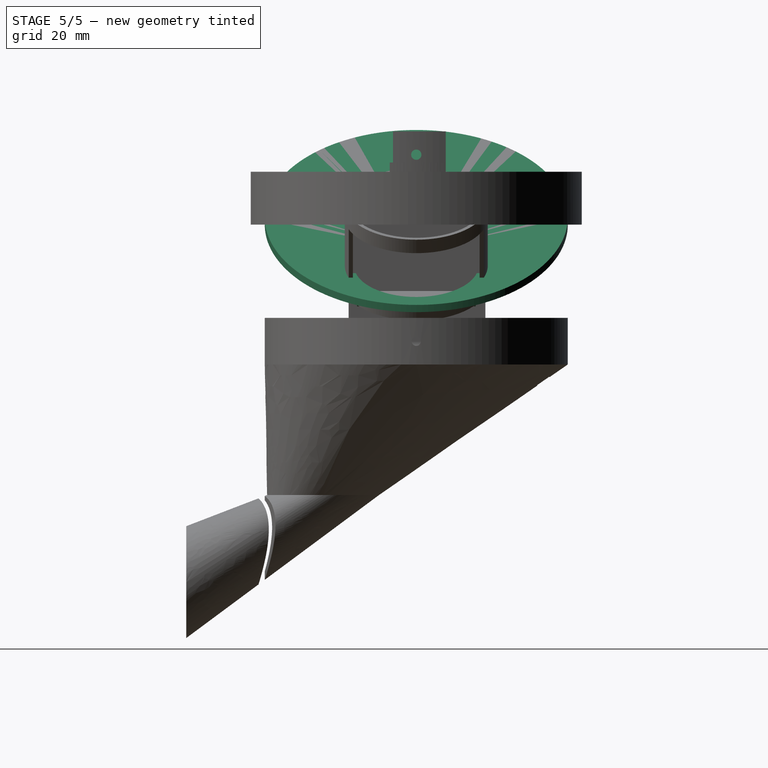
[diagram: stage 5 of 5 — right view after this stage's code; geometry added in this stage tinted green]
FEATURE [PartDesign::Body] Body002  label="superficie_inclinada antes de slice"
  Group = -> [Sketch005,Pad002]
  Origin = -> Origin003
  Placement = pos=(0,0,0) rot=(0,1,0;0.523599rad)
  Tip = -> Pad002
FEATURE [Part::FeaturePython] Slice001  # WARN: FeaturePython — macro-defined, semantics opaque (R4)
  Base = -> Body002
  Mode = 1
  Tolerance = 0
  Tools = -> [Body]
FEATURE [Part::FeaturePython] Slice001_child2  label="Slice001.2"  # WARN: FeaturePython — macro-defined, semantics opaque (R4)
  Base = -> Slice001
  FilterType = 1
  Invert = false
  OverrideMaxVal = 0
  WindowFrom = 80
  WindowTo = 100
  items = 2
FEATURE [PartDesign::FeatureBase] Clone
  BaseFeature = -> Slice001_child2
FEATURE [Sketcher::SketchObject] Sketch006
  FullyConstrained = true
  MapMode = 5
  Placement = pos=(1,0,1.73205) rot=(0,1,0;0.523599rad)
  Support = -> [Clone]
  sketch-geometry (1):
    g0: Circle CenterX=30 CenterY=0 CenterZ=0 NormalX=0 NormalY=0 NormalZ=1 AngleXU=0 Radius=20
  constraints (3):
    c: PointOnObject(g0,g-1)
    c: Diameter(g0) = 40
    c: DistanceX(g-1,g0) = 30
FEATURE [PartDesign::Pocket] Pocket001
  BaseFeature = -> Clone
  Direction = (-0.5,0,-0.866025)
  Length = 5
  Length2 = 5
  Profile = -> Sketch006
  ReferenceAxis = -> Sketch006 [N_Axis]
  Type = 1
FEATURE [Sketcher::SketchObject] Sketch007
  ExternalGeometry = -> [Pocket001]
  FullyConstrained = false
  MapMode = 5
  Placement = pos=(0,0,0) rot=(0.965926,0,-0.258819;3.14159rad)
  Support = -> [Pocket001]
  sketch-geometry (2):
    g0: Circle CenterX=30 CenterY=0 CenterZ=0 NormalX=0 NormalY=0 NormalZ=1 AngleXU=0 Radius=21.5
    g1: Circle CenterX=30 CenterY=0 CenterZ=0 NormalX=0 NormalY=0 NormalZ=1 AngleXU=0 Radius=20
  constraints (2):
    c: Equal(g1,g-3)
    c: Diameter(g0) = 43
FEATURE [PartDesign::Pad] Pad003
  BaseFeature = -> Pocket001
  Direction = (-0.5,0,-0.866025)
  Length = 25
  Length2 = 10
  Profile = -> Sketch007
  ReferenceAxis = -> Sketch007 [N_Axis]
  Type = 0
FEATURE [Sketcher::SketchObject] Sketch008
  FullyConstrained = true
  MapMode = 5
  Placement = pos=(-12.5,-5e-16,-21.6506) rot=(0.965926,0,-0.258819;3.14159rad)
  Support = -> [Pad003]
  sketch-geometry (4):
    g0: LineSegment StartX=40 StartY=22.5 StartZ=0 EndX=65 EndY=22.5 EndZ=0
    g1: LineSegment StartX=65 StartY=22.5 StartZ=0 EndX=65 EndY=-22.5 EndZ=0
    g2: LineSegment StartX=65 StartY=-22.5 StartZ=0 EndX=40 EndY=-22.5 EndZ=0
    g3: LineSegment StartX=40 StartY=-22.5 StartZ=0 EndX=40 EndY=22.5 EndZ=0
  constraints (12):
    c: Coincident(g0,g1)
    c: Coincident(g1,g2)
    c: Coincident(g2,g3)
    c: Coincident(g3,g0)
    c: Horizontal(g0)
    c: Horizontal(g2)
    c: Vertical(g1)
    c: Vertical(g3)
    c: DistanceX(g-1,g0) = 40
    c: DistanceY(g3,g3) = 45
    c: DistanceY(g-1,g0) = 22.5
    c: DistanceX(g0,g0) = 25
FEATURE [PartDesign::Pocket] Pocket002
  BaseFeature = -> Pad003
  Direction = (0.5,0,0.866025)
  Length = 20
  Length2 = 5
  Profile = -> Sketch008
  ReferenceAxis = -> Sketch008 [N_Axis]
  Type = 0
FEATURE [Sketcher::SketchObject] Sketch009
  ExternalGeometry = -> [Pocket002]
  FullyConstrained = true
  MapMode = 5
  Placement = pos=(-12.5,-5e-16,-21.6506) rot=(0.965926,0,-0.258819;3.14159rad)
  Support = -> [Pocket002]
  sketch-geometry (2):
    g0: Circle CenterX=30 CenterY=-1.8e-15 CenterZ=0 NormalX=0 NormalY=0 NormalZ=1 AngleXU=0 Radius=20
    g1: Circle CenterX=30 CenterY=-1.8e-15 CenterZ=0 NormalX=0 NormalY=0 NormalZ=1 AngleXU=0 Radius=21.5
  constraints (4):
    c: Equal(g-4,g0)
    c: Coincident(g0,g-4)
    c: Coincident(g1,g0)
    c: Equal(g-3,g1)
FEATURE [PartDesign::Pad] Pad004
  BaseFeature = -> Pocket002
  Direction = (-0.5,0,-0.866025)
  Length = 3
  Length2 = 10
  Profile = -> Sketch009
  ReferenceAxis = -> Sketch009 [N_Axis]
  Type = 0
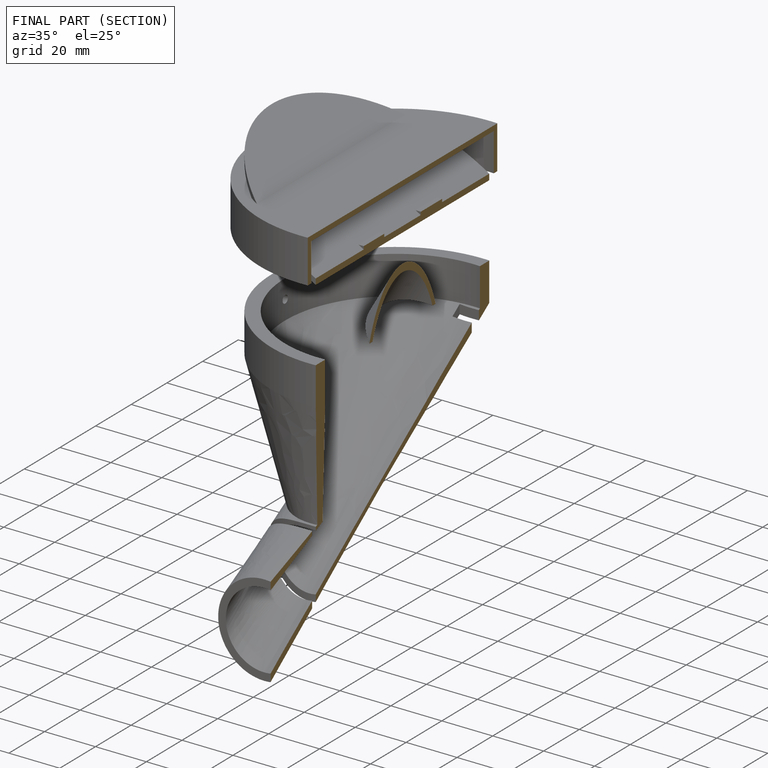
[diagram: finished part — half-section view (interior)]
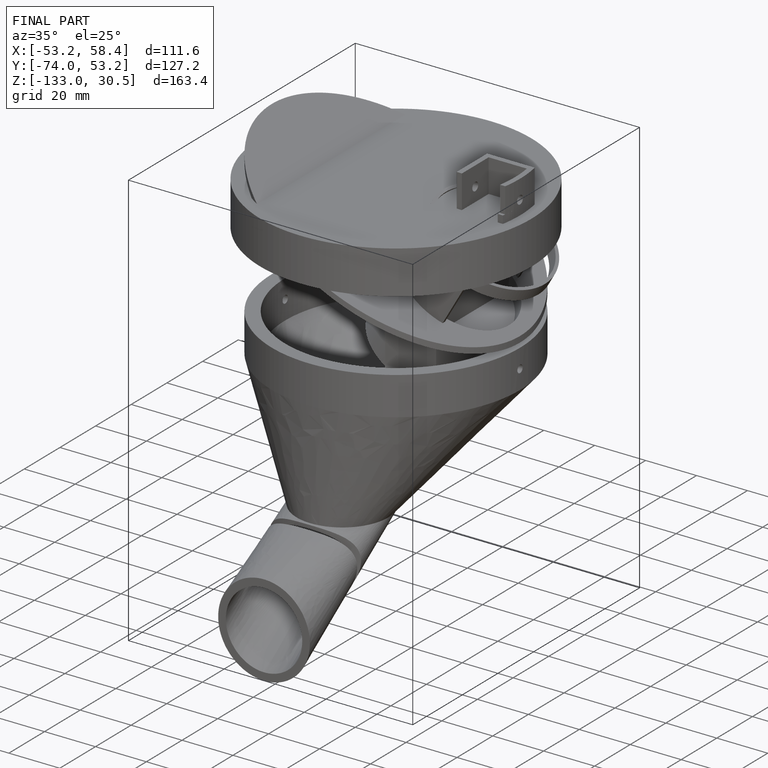
[diagram: finished part — iso view with bounding-box wireframe]
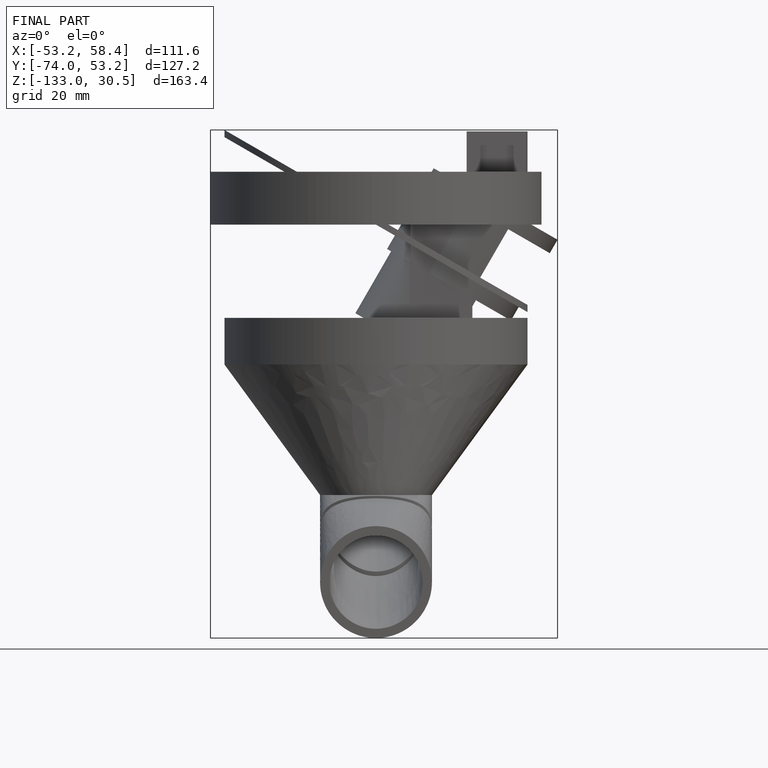
[diagram: finished part — front view with bounding-box wireframe]
